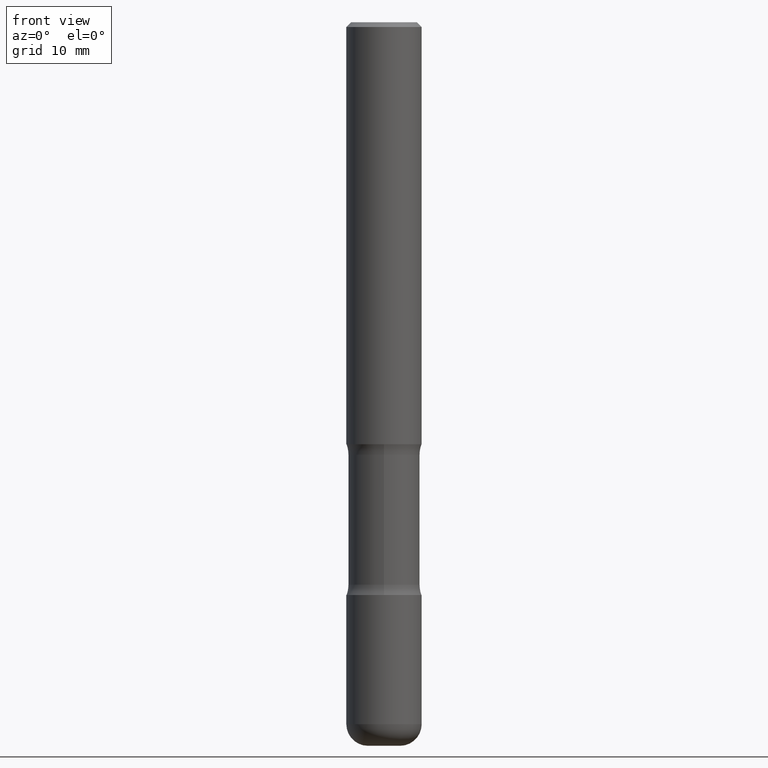
[diagram: clean part render]
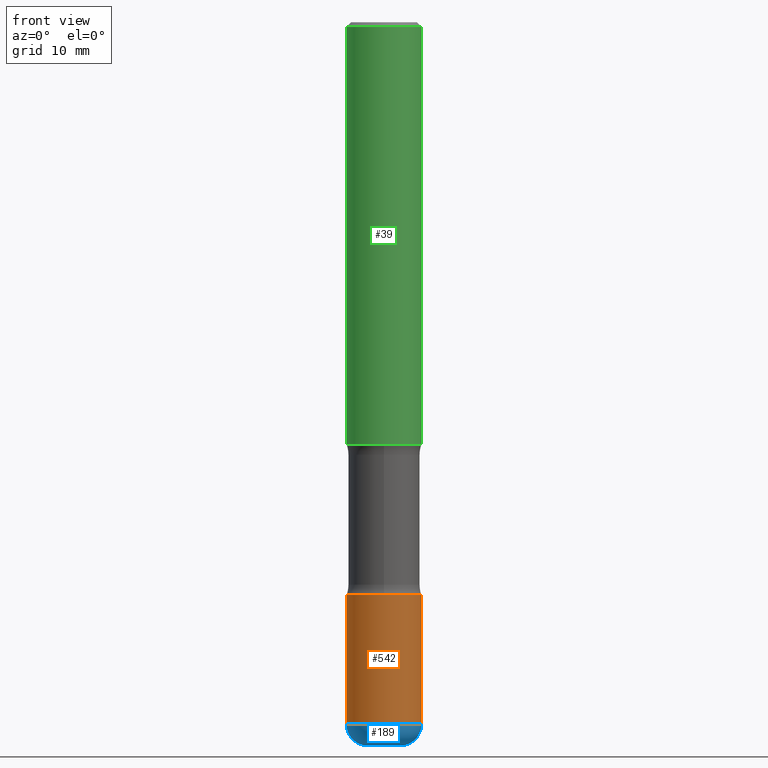
[diagram: same view with three faces highlighted in distinct colors, each labeled with its STEP entity id]
A machine part, front view with three faces highlighted in distinct colors.
Their STEP definitions:

[orange] entity #542 — the highlighted cylindrical surface (partial cylindrical patch) has radius 3.9688 mm, axis along (-0, 0, 1).
#23 = FACE_OUTER_BOUND ( 'NONE', #31, .T. ) ;
#31 = EDGE_LOOP ( 'NONE', ( #217, #64, #400, #133 ) ) ;
#44 = CARTESIAN_POINT ( 'NONE',  ( -0.1562500000000001110, -8.116016413267856641E-15, -2.375000000000000444 ) ) ;
#57 = VECTOR ( 'NONE', #164, 39.37007874015748143 ) ;
#61 = VERTEX_POINT ( 'NONE', #180 ) ;
#64 = ORIENTED_EDGE ( 'NONE', *, *, #440, .T. ) ;
#88 = VERTEX_POINT ( 'NONE', #136 ) ;
#111 = CIRCLE ( 'NONE', #196, 0.1562500000000001110 ) ;
#112 = CIRCLE ( 'NONE', #177, 0.1562500000000001665 ) ;
#124 = EDGE_CURVE ( 'NONE', #266, #484, #111, .T. ) ;
#133 = ORIENTED_EDGE ( 'NONE', *, *, #124, .F. ) ;
#136 = CARTESIAN_POINT ( 'NONE',  ( -0.1562500000000002776, -9.049987671408398127E-15, -2.910000000000001030 ) ) ;
#164 = DIRECTION ( 'NONE',  ( -2.445468806185136877E-29, 3.491481338843145188E-15, 1.000000000000000000 ) ) ;
#165 = AXIS2_PLACEMENT_3D ( 'NONE', #330, #197, #361 ) ;
#177 = AXIS2_PLACEMENT_3D ( 'NONE', #181, #346, #202 ) ;
#180 = CARTESIAN_POINT ( 'NONE',  ( 0.1562500000000002776, -1.125129861442203936E-14, -2.910000000000001030 ) ) ;
#181 = CARTESIAN_POINT ( 'NONE',  ( 7.116314225998750366E-29, -1.016021069603355624E-14, -2.910000000000001030 ) ) ;
#196 = AXIS2_PLACEMENT_3D ( 'NONE', #365, #455, #408 ) ;
#197 = DIRECTION ( 'NONE',  ( -2.445468806185136597E-29, 3.491481338843145583E-15, 1.000000000000000000 ) ) ;
#202 = DIRECTION ( 'NONE',  ( 1.000000000000000000, -6.982962677686268288E-15, 0.000000000000000000 ) ) ;
#217 = ORIENTED_EDGE ( 'NONE', *, *, #362, .F. ) ;
#247 = VECTOR ( 'NONE', #317, 39.37007874015748143 ) ;
#266 = VERTEX_POINT ( 'NONE', #44 ) ;
#317 = DIRECTION ( 'NONE',  ( -2.445468806185136877E-29, 3.491481338843145188E-15, 1.000000000000000000 ) ) ;
#330 = CARTESIAN_POINT ( 'NONE',  ( 0.000000000000000000, 0.000000000000000000, 0.000000000000000000 ) ) ;
#346 = DIRECTION ( 'NONE',  ( -2.445468806185136597E-29, 3.491481338843145583E-15, 1.000000000000000000 ) ) ;
#361 = DIRECTION ( 'NONE',  ( 1.000000000000000000, -6.982962677686266711E-15, 4.876176775795936353E-29 ) ) ;
#362 = EDGE_CURVE ( 'NONE', #88, #266, #410, .T. ) ;
#365 = CARTESIAN_POINT ( 'NONE',  ( 5.807988414689700538E-29, -8.292268179752471696E-15, -2.375000000000000444 ) ) ;
#386 = LINE ( 'NONE', #485, #247 ) ;
#387 = EDGE_CURVE ( 'NONE', #61, #484, #386, .T. ) ;
#400 = ORIENTED_EDGE ( 'NONE', *, *, #387, .T. ) ;
#408 = DIRECTION ( 'NONE',  ( 1.000000000000000000, -6.982962677686270655E-15, 0.000000000000000000 ) ) ;
#410 = LINE ( 'NONE', #541, #57 ) ;
#440 = EDGE_CURVE ( 'NONE', #88, #61, #112, .T. ) ;
#453 = CYLINDRICAL_SURFACE ( 'NONE', #165, 0.1562500000000001388 ) ;
#455 = DIRECTION ( 'NONE',  ( -2.445468806185136597E-29, 3.491481338843145583E-15, 1.000000000000000000 ) ) ;
#484 = VERTEX_POINT ( 'NONE', #545 ) ;
#485 = CARTESIAN_POINT ( 'NONE',  ( 0.1562500000000001388, -1.091087918388480160E-15, 7.619026212181157383E-30 ) ) ;
#541 = CARTESIAN_POINT ( 'NONE',  ( -0.1562500000000001388, 1.110223024625157526E-15, -7.685836078523296765E-30 ) ) ;
#542 = ADVANCED_FACE ( 'NONE', ( #23 ), #453, .T. ) ;
#545 = CARTESIAN_POINT ( 'NONE',  ( 0.1562500000000001110, -9.383356098140953236E-15, -2.375000000000000444 ) ) ;

[blue] entity #189 — the highlighted toroidal blend (fillet) surface has major radius 1.6828 mm and minor (blend) radius 2.286 mm.
#8 = DIRECTION ( 'NONE',  ( -2.445468806185136597E-29, 3.491481338843145583E-15, 1.000000000000000000 ) ) ;
#36 = CARTESIAN_POINT ( 'NONE',  ( 7.116314225998750366E-29, -1.016021069603355624E-14, -2.910000000000001030 ) ) ;
#52 = CARTESIAN_POINT ( 'NONE',  ( -0.06625000000000019762, -9.526848562748387493E-15, -3.000000000000001332 ) ) ;
#61 = VERTEX_POINT ( 'NONE', #180 ) ;
#87 = ORIENTED_EDGE ( 'NONE', *, *, #267, .T. ) ;
#88 = VERTEX_POINT ( 'NONE', #136 ) ;
#95 = CARTESIAN_POINT ( 'NONE',  ( 0.06625000000000019762, -1.093706529392615768E-14, -3.000000000000001332 ) ) ;
#97 = EDGE_LOOP ( 'NONE', ( #558, #102, #87, #272 ) ) ;
#99 = CIRCLE ( 'NONE', #118, 0.09000000000000020484 ) ;
#102 = ORIENTED_EDGE ( 'NONE', *, *, #420, .T. ) ;
#112 = CIRCLE ( 'NONE', #177, 0.1562500000000001665 ) ;
#118 = AXIS2_PLACEMENT_3D ( 'NONE', #270, #390, #476 ) ;
#121 = DIRECTION ( 'NONE',  ( 1.000000000000000000, -6.982962677686270655E-15, 4.883557194083114583E-29 ) ) ;
#129 = DIRECTION ( 'NONE',  ( -2.445468806185136597E-29, 3.491481338843145583E-15, 1.000000000000000000 ) ) ;
#136 = CARTESIAN_POINT ( 'NONE',  ( -0.1562500000000002776, -9.049987671408398127E-15, -2.910000000000001030 ) ) ;
#146 = CARTESIAN_POINT ( 'NONE',  ( -0.06625000000000018374, -9.689476133592488862E-15, -2.910000000000001030 ) ) ;
#155 = FACE_OUTER_BOUND ( 'NONE', #97, .T. ) ;
#177 = AXIS2_PLACEMENT_3D ( 'NONE', #181, #346, #202 ) ;
#180 = CARTESIAN_POINT ( 'NONE',  ( 0.1562500000000002776, -1.125129861442203936E-14, -2.910000000000001030 ) ) ;
#181 = CARTESIAN_POINT ( 'NONE',  ( 7.116314225998750366E-29, -1.016021069603355624E-14, -2.910000000000001030 ) ) ;
#188 = DIRECTION ( 'NONE',  ( 1.000000000000000000, -6.982962677686264344E-15, 0.000000000000000000 ) ) ;
#189 = ADVANCED_FACE ( 'NONE', ( #155 ), #449, .T. ) ;
#202 = DIRECTION ( 'NONE',  ( 1.000000000000000000, -6.982962677686268288E-15, 0.000000000000000000 ) ) ;
#230 = AXIS2_PLACEMENT_3D ( 'NONE', #146, #438, #384 ) ;
#236 = CARTESIAN_POINT ( 'NONE',  ( 7.336406418555413153E-29, -1.047444401652944109E-14, -3.000000000000001332 ) ) ;
#252 = VERTEX_POINT ( 'NONE', #52 ) ;
#255 = CIRCLE ( 'NONE', #230, 0.09000000000000020484 ) ;
#256 = VERTEX_POINT ( 'NONE', #95 ) ;
#267 = EDGE_CURVE ( 'NONE', #256, #61, #99, .T. ) ;
#270 = CARTESIAN_POINT ( 'NONE',  ( 0.06625000000000018374, -1.062283197343027283E-14, -2.910000000000001030 ) ) ;
#272 = ORIENTED_EDGE ( 'NONE', *, *, #440, .F. ) ;
#278 = EDGE_CURVE ( 'NONE', #252, #88, #255, .T. ) ;
#346 = DIRECTION ( 'NONE',  ( -2.445468806185136597E-29, 3.491481338843145583E-15, 1.000000000000000000 ) ) ;
#384 = DIRECTION ( 'NONE',  ( -1.000000000000000000, 7.105427357600996337E-15, 0.000000000000000000 ) ) ;
#390 = DIRECTION ( 'NONE',  ( -6.982962677686266711E-15, -1.000000000000000000, 3.491481338843145583E-15 ) ) ;
#420 = EDGE_CURVE ( 'NONE', #252, #256, #559, .T. ) ;
#438 = DIRECTION ( 'NONE',  ( 7.105427357601001859E-15, 1.000000000000000000, -3.491481338843145583E-15 ) ) ;
#440 = EDGE_CURVE ( 'NONE', #88, #61, #112, .T. ) ;
#449 = TOROIDAL_SURFACE ( 'NONE', #488, 0.06625000000000018374, 0.09000000000000020484 ) ;
#476 = DIRECTION ( 'NONE',  ( 1.000000000000000000, -6.982962677686273021E-15, 0.000000000000000000 ) ) ;
#479 = AXIS2_PLACEMENT_3D ( 'NONE', #236, #8, #188 ) ;
#488 = AXIS2_PLACEMENT_3D ( 'NONE', #36, #129, #121 ) ;
#558 = ORIENTED_EDGE ( 'NONE', *, *, #278, .F. ) ;
#559 = CIRCLE ( 'NONE', #479, 0.06625000000000019762 ) ;

[green] entity #39 — the highlighted cylindrical surface (partial cylindrical patch) has radius 3.9687 mm, axis along (-0, 0, 1).
#3 = ORIENTED_EDGE ( 'NONE', *, *, #297, .F. ) ;
#11 = VERTEX_POINT ( 'NONE', #51 ) ;
#26 = AXIS2_PLACEMENT_3D ( 'NONE', #226, #531, #56 ) ;
#39 = ADVANCED_FACE ( 'NONE', ( #481 ), #356, .T. ) ;
#50 = DIRECTION ( 'NONE',  ( 1.000000000000000000, -6.982962677686266711E-15, 0.000000000000000000 ) ) ;
#51 = CARTESIAN_POINT ( 'NONE',  ( -0.1562500000000000833, -1.979737960251025472E-15, -1.750000000000000444 ) ) ;
#56 = DIRECTION ( 'NONE',  ( 1.000000000000000000, -6.982962677686266711E-15, 4.876176775795936353E-29 ) ) ;
#60 = ORIENTED_EDGE ( 'NONE', *, *, #205, .T. ) ;
#65 = LINE ( 'NONE', #331, #544 ) ;
#77 = CARTESIAN_POINT ( 'NONE',  ( 4.279570410823989605E-29, -6.110092342975506249E-15, -1.750000000000000444 ) ) ;
#205 = EDGE_CURVE ( 'NONE', #11, #445, #382, .T. ) ;
#209 = VERTEX_POINT ( 'NONE', #397 ) ;
#226 = CARTESIAN_POINT ( 'NONE',  ( 0.000000000000000000, 0.000000000000000000, 0.000000000000000000 ) ) ;
#253 = ORIENTED_EDGE ( 'NONE', *, *, #555, .F. ) ;
#277 = CARTESIAN_POINT ( 'NONE',  ( 0.1562500000000000833, -7.201180261363985422E-15, -1.750000000000000444 ) ) ;
#286 = EDGE_LOOP ( 'NONE', ( #253, #60, #320, #3 ) ) ;
#289 = DIRECTION ( 'NONE',  ( -2.445468806185136877E-29, 3.491481338843145188E-15, 1.000000000000000000 ) ) ;
#297 = EDGE_CURVE ( 'NONE', #464, #209, #314, .T. ) ;
#308 = CARTESIAN_POINT ( 'NONE',  ( 4.890937612370273159E-31, -6.982962677686291609E-17, -0.02000000000000000042 ) ) ;
#314 = CIRCLE ( 'NONE', #543, 0.1562499999999998612 ) ;
#320 = ORIENTED_EDGE ( 'NONE', *, *, #494, .T. ) ;
#331 = CARTESIAN_POINT ( 'NONE',  ( 0.1562499999999999722, -1.091087918388478976E-15, 7.619026212181148976E-30 ) ) ;
#341 = DIRECTION ( 'NONE',  ( -2.445468806185136597E-29, 3.491481338843145583E-15, 1.000000000000000000 ) ) ;
#356 = CYLINDRICAL_SURFACE ( 'NONE', #26, 0.1562499999999999722 ) ;
#382 = CIRCLE ( 'NONE', #466, 0.1562500000000000833 ) ;
#397 = CARTESIAN_POINT ( 'NONE',  ( 0.1562499999999998612, -1.141782438928663922E-15, -0.02000000000000000042 ) ) ;
#407 = CARTESIAN_POINT ( 'NONE',  ( -0.1562499999999999722, 1.110223024625156343E-15, -7.685836078523288357E-30 ) ) ;
#424 = VECTOR ( 'NONE', #536, 39.37007874015748143 ) ;
#445 = VERTEX_POINT ( 'NONE', #277 ) ;
#461 = DIRECTION ( 'NONE',  ( 1.000000000000000000, -6.982962677686265133E-15, 0.000000000000000000 ) ) ;
#464 = VERTEX_POINT ( 'NONE', #540 ) ;
#466 = AXIS2_PLACEMENT_3D ( 'NONE', #77, #341, #461 ) ;
#473 = DIRECTION ( 'NONE',  ( -2.445468806185136597E-29, 3.491481338843145583E-15, 1.000000000000000000 ) ) ;
#481 = FACE_OUTER_BOUND ( 'NONE', #286, .T. ) ;
#494 = EDGE_CURVE ( 'NONE', #445, #209, #65, .T. ) ;
#502 = LINE ( 'NONE', #407, #424 ) ;
#531 = DIRECTION ( 'NONE',  ( -2.445468806185136597E-29, 3.491481338843145583E-15, 1.000000000000000000 ) ) ;
#536 = DIRECTION ( 'NONE',  ( -2.445468806185136877E-29, 3.491481338843145188E-15, 1.000000000000000000 ) ) ;
#540 = CARTESIAN_POINT ( 'NONE',  ( -0.1562499999999998612, 1.021258291611615284E-15, -0.02000000000000000042 ) ) ;
#543 = AXIS2_PLACEMENT_3D ( 'NONE', #308, #473, #50 ) ;
#544 = VECTOR ( 'NONE', #289, 39.37007874015748143 ) ;
#555 = EDGE_CURVE ( 'NONE', #11, #464, #502, .T. ) ;